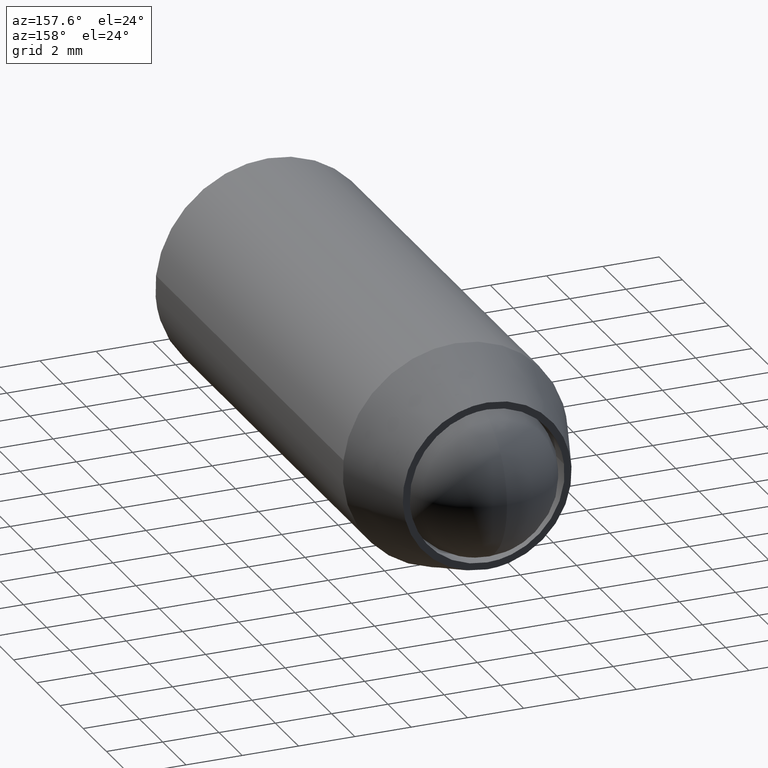
[diagram: clean part render]
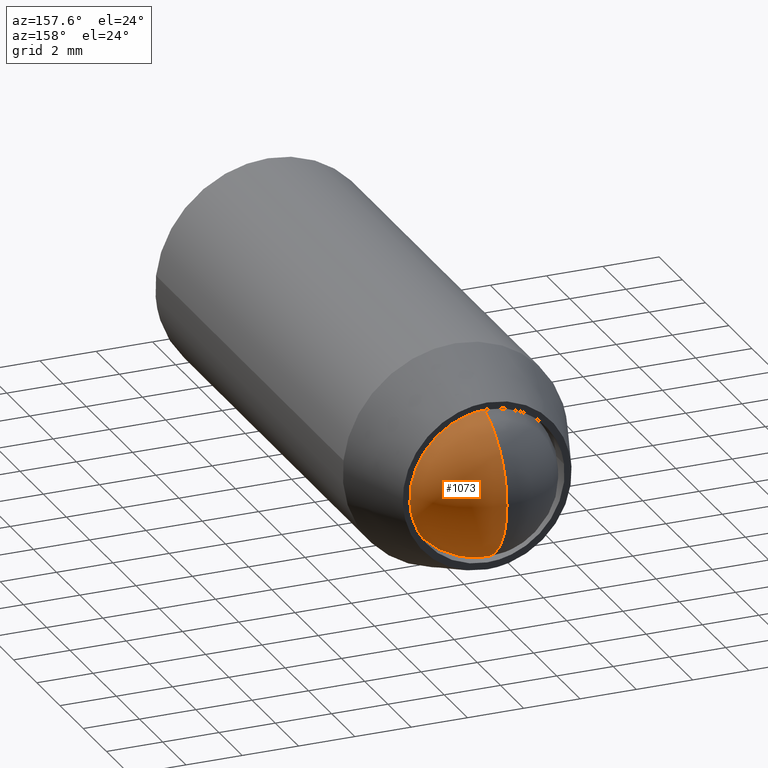
[diagram: same view with one face highlighted and labeled with its STEP entity id]
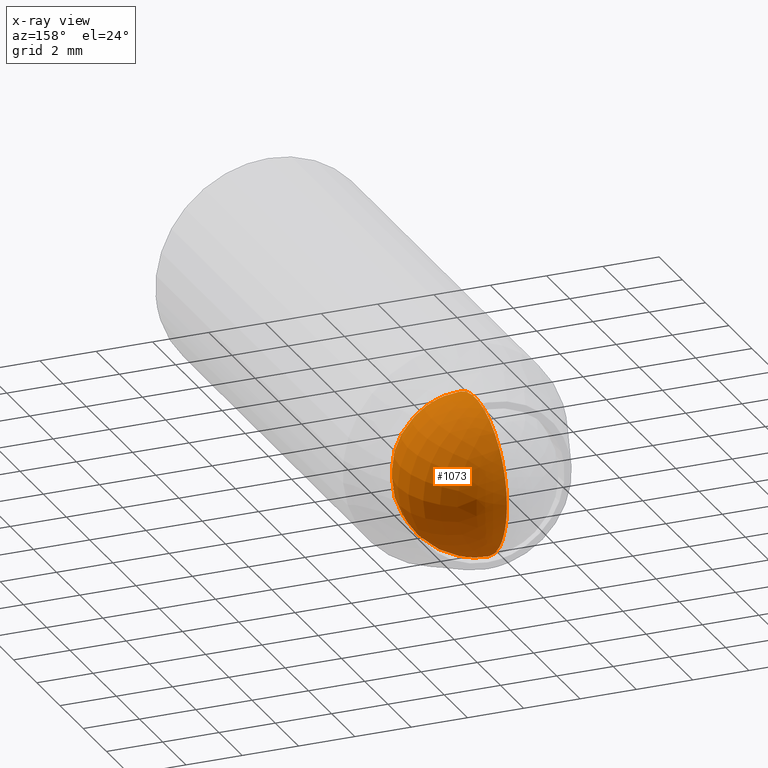
[diagram: x-ray of the same camera — body ghosted, the highlighted face saturated]
A machine part, auxiliary view. The second image highlights one B-rep face of the part: STEP entity #1073.
The next image is the same camera in x-ray: the body ghosted, the highlighted face saturated — about 0% of this face is hidden behind the body in this view.
In plain terms, the highlighted face is a freeform B-spline surface patch.
Its self-contained STEP definition (entity closure, byte-faithful):
#993=CARTESIAN_POINT('',(-1.031250000000000,-2.852640207792473,-1.802640207792447));
#994=CARTESIAN_POINT('',(-0.674528301886792,-2.682579810830922,-2.176773081107861));
#995=CARTESIAN_POINT('',(-0.130952380952381,-1.736720079159054,-2.746880316636110));
#996=CARTESIAN_POINT('',(-0.130952380952381,-0.363279920840998,-2.746880316636110));
#997=CARTESIAN_POINT('',(-0.674528301886792,0.582579810830870,-2.176773081107861));
#998=CARTESIAN_POINT('',(-1.031250000000000,0.752640207792422,-1.802640207792447));
#999=CARTESIAN_POINT('',(-0.674528301886792,-3.226773081107888,-1.632579810830895));
#1000=CARTESIAN_POINT('',(-0.130952380952381,-3.110160237477109,-2.060160237477082));
#1001=CARTESIAN_POINT('',(0.798387096774193,-1.980394945957418,-2.791184837872177));
#1002=CARTESIAN_POINT('',(0.798387096774193,-0.119605054042634,-2.791184837872177));
#1003=CARTESIAN_POINT('',(-0.130952380952381,1.010160237477057,-2.060160237477082));
#1004=CARTESIAN_POINT('',(-0.674528301886792,1.126773081107835,-1.632579810830895));
#1005=CARTESIAN_POINT('',(-0.130952380952381,-3.796880316636136,-0.686720079159027));
#1006=CARTESIAN_POINT('',(0.798387096774193,-3.841184837872203,-0.930394945957392));
#1007=CARTESIAN_POINT('',(2.749999999999999,-2.492112166233984,-1.442112166233957));
#1008=CARTESIAN_POINT('',(2.749999999999999,0.392112166233932,-1.442112166233957));
#1009=CARTESIAN_POINT('',(0.798387096774193,1.741184837872151,-0.930394945957392));
#1010=CARTESIAN_POINT('',(-0.130952380952381,1.696880316636084,-0.686720079159027));
#1011=CARTESIAN_POINT('',(-0.130952380952381,-3.796880316636136,0.686720079159028));
#1012=CARTESIAN_POINT('',(0.798387096774193,-3.841184837872203,0.930394945957393));
#1013=CARTESIAN_POINT('',(2.749999999999999,-2.492112166233984,1.442112166233959));
#1014=CARTESIAN_POINT('',(2.749999999999999,0.392112166233932,1.442112166233959));
#1015=CARTESIAN_POINT('',(0.798387096774193,1.741184837872151,0.930394945957393));
#1016=CARTESIAN_POINT('',(-0.130952380952381,1.696880316636084,0.686720079159028));
#1017=CARTESIAN_POINT('',(-0.674528301886792,-3.226773081107888,1.632579810830897));
#1018=CARTESIAN_POINT('',(-0.130952380952381,-3.110160237477109,2.060160237477083));
#1019=CARTESIAN_POINT('',(0.798387096774193,-1.980394945957418,2.791184837872177));
#1020=CARTESIAN_POINT('',(0.798387096774193,-0.119605054042634,2.791184837872177));
#1021=CARTESIAN_POINT('',(-0.130952380952381,1.010160237477057,2.060160237477083));
#1022=CARTESIAN_POINT('',(-0.674528301886792,1.126773081107835,1.632579810830897));
#1023=CARTESIAN_POINT('',(-1.031250000000000,-2.852640207792473,1.802640207792448));
#1024=CARTESIAN_POINT('',(-0.674528301886792,-2.682579810830922,2.176773081107862));
#1025=CARTESIAN_POINT('',(-0.130952380952381,-1.736720079159054,2.746880316636111));
#1026=CARTESIAN_POINT('',(-0.130952380952381,-0.363279920840998,2.746880316636111));
#1027=CARTESIAN_POINT('',(-0.674528301886792,0.582579810830870,2.176773081107862));
#1028=CARTESIAN_POINT('',(-1.031250000000000,0.752640207792422,1.802640207792448));
#1036=(BOUNDED_SURFACE()B_SPLINE_SURFACE(2,2,((#993,#999,#1005,#1011,#1017,#1023),(#994,#1000,#1006,#1012,#1018,#1024),(#995,#1001,#1007,#1013,#1019,#1025),(#996,#1002,#1008,#1014,#1020,#1026),(#997,#1003,#1009,#1015,#1021,#1027),(#998,#1004,#1010,#1016,#1022,#1028)),.UNSPECIFIED.,.F.,.F.,.U.)B_SPLINE_SURFACE_WITH_KNOTS((3,1,1,1,3),(3,1,1,1,3),(0.0,2.535581830741026,5.071163661482052,7.606745492223078,10.142327322964100),(0.0,2.535581830741025,5.071163661482050,7.606745492223075,10.142327322964100),.UNSPECIFIED.)GEOMETRIC_REPRESENTATION_ITEM()RATIONAL_B_SPLINE_SURFACE(((3.200000000000000,2.650000000000000,2.100000000000000,2.100000000000000,2.650000000000000,3.200000000000000),(2.650000000000000,2.100000000000000,1.550000000000000,1.550000000000000,2.100000000000000,2.650000000000000),(2.100000000000000,1.550000000000000,1.0,1.0,1.550000000000000,2.100000000000000),(2.100000000000000,1.550000000000000,1.0,1.0,1.550000000000000,2.100000000000000),(2.650000000000000,2.100000000000000,1.550000000000000,1.550000000000000,2.100000000000000,2.650000000000000),(3.200000000000000,2.650000000000000,2.100000000000000,2.100000000000000,2.650000000000000,3.200000000000000)))REPRESENTATION_ITEM('')SURFACE());
#1037=CARTESIAN_POINT('',(0.0,1.699999999999974,6.092417E-016));
#1038=VERTEX_POINT('',#1037);
#1039=CARTESIAN_POINT('',(0.0,-3.800000000000026,6.092417E-016));
#1040=VERTEX_POINT('',#1039);
#1041=CARTESIAN_POINT('',(0.0,1.699999999999974,6.092417E-016));
#1042=CARTESIAN_POINT('',(0.0,1.699999999999973,2.750000000000000));
#1043=CARTESIAN_POINT('',(0.0,-1.050000000000026,2.750000000000000));
#1044=CARTESIAN_POINT('',(0.0,-3.800000000000026,2.750000000000000));
#1045=CARTESIAN_POINT('',(0.0,-3.800000000000026,6.092417E-016));
#1053=(BOUNDED_CURVE()B_SPLINE_CURVE(2,(#1041,#1042,#1043,#1044,#1045),.UNSPECIFIED.,.F.,.U.)B_SPLINE_CURVE_WITH_KNOTS((3,2,3),(0.0,0.500000000000000,1.0),.UNSPECIFIED.)CURVE()GEOMETRIC_REPRESENTATION_ITEM()RATIONAL_B_SPLINE_CURVE((1.0,0.707106781186548,1.0,0.707106781186548,1.0))REPRESENTATION_ITEM(''));
#1054=EDGE_CURVE('',#1038,#1040,#1053,.T.);
#1055=ORIENTED_EDGE('',*,*,#1054,.T.);
#1056=CARTESIAN_POINT('',(0.0,1.699999999999974,6.092417E-016));
#1057=CARTESIAN_POINT('',(0.0,1.699999999999973,-2.749999999999999));
#1058=CARTESIAN_POINT('',(0.0,-1.050000000000026,-2.750000000000000));
#1059=CARTESIAN_POINT('',(0.0,-3.800000000000026,-2.749999999999999));
#1060=CARTESIAN_POINT('',(0.0,-3.800000000000026,6.092417E-016));
#1068=(BOUNDED_CURVE()B_SPLINE_CURVE(2,(#1056,#1057,#1058,#1059,#1060),.UNSPECIFIED.,.F.,.U.)B_SPLINE_CURVE_WITH_KNOTS((3,2,3),(0.0,0.500000000000000,1.0),.UNSPECIFIED.)CURVE()GEOMETRIC_REPRESENTATION_ITEM()RATIONAL_B_SPLINE_CURVE((1.0,0.707106781186548,1.0,0.707106781186548,1.0))REPRESENTATION_ITEM(''));
#1069=EDGE_CURVE('',#1038,#1040,#1068,.T.);
#1070=ORIENTED_EDGE('',*,*,#1069,.F.);
#1071=EDGE_LOOP('',(#1055,#1070));
#1072=FACE_OUTER_BOUND('',#1071,.T.);
#1073=ADVANCED_FACE('',(#1072),#1036,.T.);